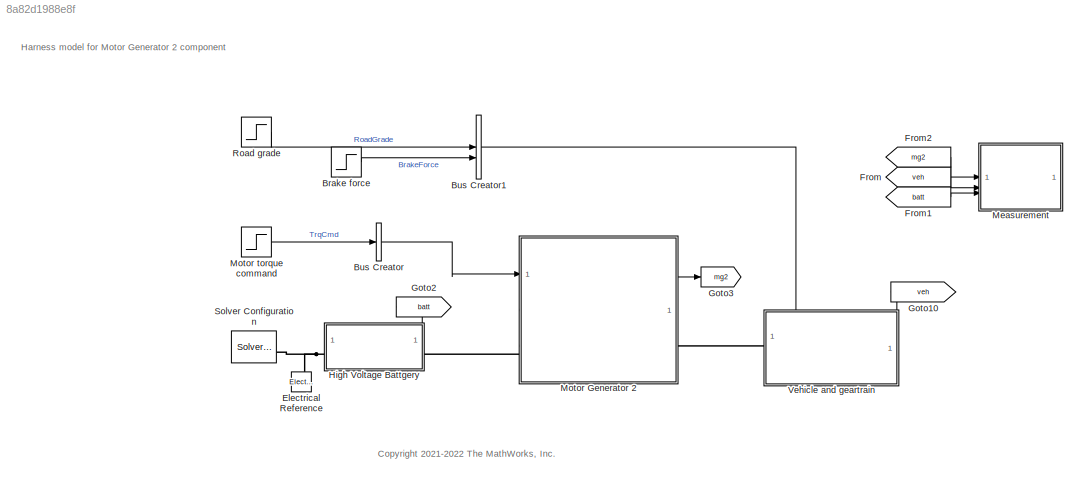
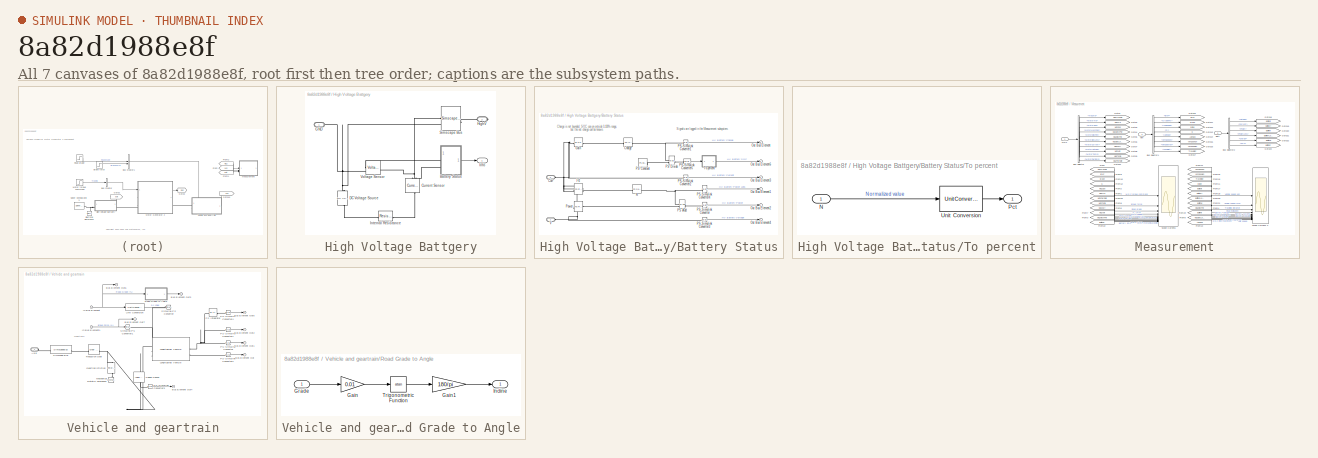
[diagram: thumbnail index - all 7 canvases of the model, root first then tree order]
MODEL mdl_8a82d1988e8f
KIND model
CONFIG AbsTol = 1e-3
CONFIG EnableMultiTasking = off
CONFIG FixedStep = auto
CONFIG MaxStep = auto
CONFIG MinStep = auto
CONFIG PreLoadFcn = MotorGenerator2_Component_harness_setup\n
CONFIG RelTol = 1e-3
CONFIG SampleTimeConstraint = Unconstrained
CONFIG SolverName = daessc
CONFIG StartTime = 0.0
CONFIG StopTime = 200
BLOCK [Step] Brake force
  After = 0
  AttributesFormatString = Before: %<Before>\nTime: %<Time>\nAfter: %<After>
  NameLocation = left
  SampleTime = 0
BLOCK [BusCreator] Bus Creator
  DisplayOption = bar
  InheritFromInputs = on
  Inputs = 1
BLOCK [BusCreator] Bus Creator1
  DisplayOption = bar
  InheritFromInputs = on
  Inputs = 2
BLOCK [Reference] Electrical Reference  REF=fl_lib/Electrical/Electrical Elements/Electrical Reference
  SourceBlock = fl_lib/Electrical/Electrical Elements/Electrical Reference
  SourceType = Electrical Reference
BLOCK [From] From
  GotoTag = veh
  NameLocation = left
BLOCK [From] From1
  GotoTag = batt
  NameLocation = left
BLOCK [From] From2
  GotoTag = mg2
  NameLocation = left
BLOCK [Goto] Goto10
  GotoTag = veh
BLOCK [Goto] Goto2
  GotoTag = batt
  NameLocation = top
BLOCK [Goto] Goto3
  GotoTag = mg2
BLOCK [SubSystem] High Voltage Battgery
  PortSchema = {"entries":[{"content":{"sides":[{"content":{"connectorIds":["LConn1"]},"type":"ConnectorPlacement.EquallySpacedRectSide","uuid":"8acd7e9a-bb08-4de6-aa14-0989ebba81b9"},{"content":{"connectorIds":["RConn1"],"side":"RIGHT"},"type":"ConnectorPlacement.EquallySpacedRectSide","uuid":"f80e1afc-966f-4d6b-84f9-f0b60dd6f20c"},{"content":{"connectorIds":["Out1"],"side":"TOP"},"type":"ConnectorPlacement.Equ...<+251ch>
BLOCK [SubSystem] High Voltage Battgery/Battery Status
BLOCK [Reference] High Voltage Battgery/Battery Status/Charge  REF=fl_lib/Physical Signals/Linear Operators/PS Integrator
  AttributesFormatString = %<x0> [%<x0_unit>]
  SourceBlock = fl_lib/Physical Signals/Linear Operators/PS Integrator
  SourceType = PS Integrator
BLOCK [PMIOPort] High Voltage Battgery/Battery Status/Curr
  Port = 2
  Side = Left
BLOCK [Reference] High Voltage Battgery/Battery Status/Gain  REF=fl_lib/Physical Signals/Functions/PS Gain
  AttributesFormatString = %<gain>
  SourceBlock = fl_lib/Physical Signals/Functions/PS Gain
  SourceType = PS Gain
BLOCK [Reference] High Voltage Battgery/Battery Status/I^2  REF=fl_lib/Physical Signals/Functions/PS Product
  SourceBlock = fl_lib/Physical Signals/Functions/PS Product
  SourceType = PS Product
BLOCK [Outport] High Voltage Battgery/Battery Status/Out Bus Element
  AttributesFormatString = %<Unit>
BLOCK [Outport] High Voltage Battgery/Battery Status/Out Bus Element1
  AttributesFormatString = %<Unit>
BLOCK [Outport] High Voltage Battgery/Battery Status/Out Bus Element2
  AttributesFormatString = %<Unit>
BLOCK [Outport] High Voltage Battgery/Battery Status/Out Bus Element3
  AttributesFormatString = %<Unit>
BLOCK [Outport] High Voltage Battgery/Battery Status/Out Bus Element4
  AttributesFormatString = %<Unit>
BLOCK [Outport] High Voltage Battgery/Battery Status/Out Bus Element6
  AttributesFormatString = %<Unit>
BLOCK [Reference] High Voltage Battgery/Battery Status/PS Add  REF=fl_lib/Physical Signals/Functions/PS Add
  SourceBlock = fl_lib/Physical Signals/Functions/PS Add
  SourceType = PS Add
BLOCK [Reference] High Voltage Battgery/Battery Status/PS Constant  REF=fl_lib/Physical Signals/Sources/PS Constant
  AttributesFormatString = %<constant> [%<constant_unit>]
  NameLocation = left
  SourceBlock = fl_lib/Physical Signals/Sources/PS Constant
  SourceType = PS Constant
BLOCK [Reference] High Voltage Battgery/Battery Status/PS Divide  REF=fl_lib/Physical Signals/Functions/PS Divide
  SourceBlock = fl_lib/Physical Signals/Functions/PS Divide
  SourceType = PS Divide
BLOCK [Reference] High Voltage Battgery/Battery Status/PS-Simulink Converter  REF=nesl_utility/PS-Simulink
Converter
  AttributesFormatString = %<Unit>
  SourceBlock = nesl_utility/PS-Simulink\nConverter
  SourceType = PS-Simulink\nConverter
BLOCK [Reference] High Voltage Battgery/Battery Status/PS-Simulink Converter1  REF=nesl_utility/PS-Simulink
Converter
  AttributesFormatString = %<Unit>
  SourceBlock = nesl_utility/PS-Simulink\nConverter
  SourceType = PS-Simulink\nConverter
BLOCK [Reference] High Voltage Battgery/Battery Status/PS-Simulink Converter2  REF=nesl_utility/PS-Simulink
Converter
  AttributesFormatString = %<Unit>
  SourceBlock = nesl_utility/PS-Simulink\nConverter
  SourceType = PS-Simulink\nConverter
BLOCK [Reference] High Voltage Battgery/Battery Status/PS-Simulink Converter3  REF=nesl_utility/PS-Simulink
Converter
  AttributesFormatString = %<Unit>
  SourceBlock = nesl_utility/PS-Simulink\nConverter
  SourceType = PS-Simulink\nConverter
BLOCK [Reference] High Voltage Battgery/Battery Status/PS-Simulink Converter4  REF=nesl_utility/PS-Simulink
Converter
  AttributesFormatString = %<Unit>
  SourceBlock = nesl_utility/PS-Simulink\nConverter
  SourceType = PS-Simulink\nConverter
BLOCK [Reference] High Voltage Battgery/Battery Status/PS-Simulink Converter6  REF=nesl_utility/PS-Simulink
Converter
  AttributesFormatString = %<Unit>
  SourceBlock = nesl_utility/PS-Simulink\nConverter
  SourceType = PS-Simulink\nConverter
BLOCK [Reference] High Voltage Battgery/Battery Status/Power  REF=fl_lib/Physical Signals/Functions/PS Product
  SourceBlock = fl_lib/Physical Signals/Functions/PS Product
  SourceType = PS Product
BLOCK [Reference] High Voltage Battgery/Battery Status/R  REF=fl_lib/Physical Signals/Functions/PS Gain
  AttributesFormatString = %<gain> [%<gain_unit>]
  SourceBlock = fl_lib/Physical Signals/Functions/PS Gain
  SourceType = PS Gain
BLOCK [SubSystem] High Voltage Battgery/Battery Status/To percent
  ShowPortLabels = FromPortBlockName
BLOCK [Inport] High Voltage Battgery/Battery Status/To percent/N
BLOCK [Outport] High Voltage Battgery/Battery Status/To percent/Pct
  AttributesFormatString = %<Unit>
  Unit = %
BLOCK [UnitConversion] High Voltage Battgery/Battery Status/To percent/Unit Conversion
BLOCK [PMIOPort] High Voltage Battgery/Battery Status/V
  Side = Left
BLOCK [Reference] High Voltage Battgery/Current Sensor  REF=fl_lib/Electrical/Electrical Sensors/Current Sensor
  NameLocation = right
  SourceBlock = fl_lib/Electrical/Electrical Sensors/Current Sensor
  SourceType = Current Sensor
BLOCK [Reference] High Voltage Battgery/DC Voltage Source  REF=fl_lib/Electrical/Electrical Sources/DC Voltage Source
  AttributesFormatString = %<v0> [%<v0_unit>]
  NameLocation = right
  SourceBlock = fl_lib/Electrical/Electrical Sources/DC Voltage Source
  SourceType = DC Voltage Source
BLOCK [PMIOPort] High Voltage Battgery/GND
  Side = Left
BLOCK [PMIOPort] High Voltage Battgery/HighV
  Port = 2
  Side = Right
BLOCK [Outport] High Voltage Battgery/Info
BLOCK [Reference] High Voltage Battgery/Internal Resistance  REF=fl_lib/Electrical/Electrical Elements/Resistor
  AttributesFormatString = %<R> [%<R_unit>]
  SourceBlock = fl_lib/Electrical/Electrical Elements/Resistor
  SourceType = Resistor
BLOCK [SimscapeBus] High Voltage Battgery/Simscape Bus
  AttributesFormatString = %<ConnectionType>
  ConnectionType = Bus: Bus_HighVoltage
  HierarchyStrings = Plus;Minus
BLOCK [Reference] High Voltage Battgery/Voltage Sensor  REF=fl_lib/Electrical/Electrical Sensors/Voltage Sensor
  SourceBlock = fl_lib/Electrical/Electrical Sensors/Voltage Sensor
  SourceType = Voltage Sensor
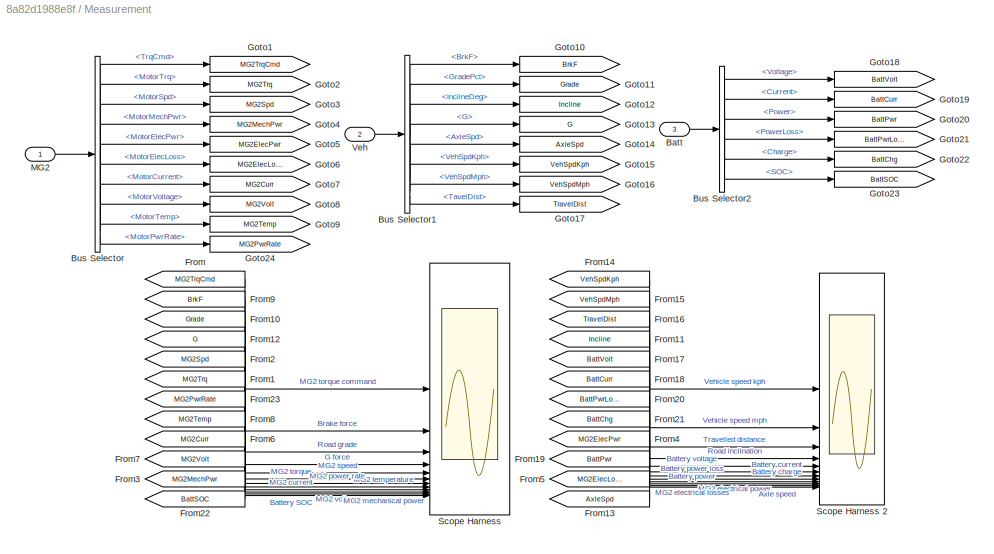
BLOCK [SubSystem] Measurement
BLOCK [Inport] Measurement/Batt
  Port = 3
BLOCK [BusSelector] Measurement/Bus Selector
  OutputSignals = TrqCmd,MotorTrq,MotorSpd,MotorMechPwr,MotorElecPwr,MotorElecLoss,MotorCurrent,MotorVoltage,MotorTemp,MotorPwrRate
BLOCK [BusSelector] Measurement/Bus Selector1
  OutputSignals = BrkF,GradePct,InclineDeg,G,AxleSpd,VehSpdKph,VehSpdMph,TavelDist
BLOCK [BusSelector] Measurement/Bus Selector2
  OutputSignals = Voltage,Current,Power,PowerLoss,Charge,SOC
BLOCK [From] Measurement/From
  GotoTag = MG2TrqCmd
  NameLocation = left
BLOCK [From] Measurement/From1
  GotoTag = MG2Trq
  NameLocation = left
BLOCK [From] Measurement/From10
  GotoTag = Grade
  NameLocation = left
BLOCK [From] Measurement/From11
  GotoTag = Incline
  NameLocation = left
BLOCK [From] Measurement/From12
  GotoTag = G
  NameLocation = left
BLOCK [From] Measurement/From13
  GotoTag = AxleSpd
  NameLocation = left
BLOCK [From] Measurement/From14
  GotoTag = VehSpdKph
  NameLocation = left
BLOCK [From] Measurement/From15
  GotoTag = VehSpdMph
  NameLocation = left
BLOCK [From] Measurement/From16
  GotoTag = TravelDist
  NameLocation = left
BLOCK [From] Measurement/From17
  GotoTag = BattVolt
  NameLocation = left
BLOCK [From] Measurement/From18
  GotoTag = BattCurr
  NameLocation = left
BLOCK [From] Measurement/From19
  GotoTag = BattPwr
  NameLocation = left
BLOCK [From] Measurement/From2
  GotoTag = MG2Spd
  NameLocation = left
BLOCK [From] Measurement/From20
  GotoTag = BattPwrLoss
  NameLocation = left
BLOCK [From] Measurement/From21
  GotoTag = BattChg
  NameLocation = left
BLOCK [From] Measurement/From22
  GotoTag = BattSOC
  NameLocation = left
BLOCK [From] Measurement/From23
  GotoTag = MG2PwrRate
  NameLocation = left
BLOCK [From] Measurement/From3
  GotoTag = MG2MechPwr
  NameLocation = left
BLOCK [From] Measurement/From4
  GotoTag = MG2ElecPwr
  NameLocation = left
BLOCK [From] Measurement/From5
  GotoTag = MG2ElecLoss
  NameLocation = left
BLOCK [From] Measurement/From6
  GotoTag = MG2Curr
  NameLocation = left
BLOCK [From] Measurement/From7
  GotoTag = MG2Volt
  NameLocation = left
BLOCK [From] Measurement/From8
  GotoTag = MG2Temp
  NameLocation = left
BLOCK [From] Measurement/From9
  GotoTag = BrkF
  NameLocation = left
BLOCK [Goto] Measurement/Goto1
  GotoTag = MG2TrqCmd
  NameLocation = right
BLOCK [Goto] Measurement/Goto10
  GotoTag = BrkF
  NameLocation = right
BLOCK [Goto] Measurement/Goto11
  GotoTag = Grade
  NameLocation = right
BLOCK [Goto] Measurement/Goto12
  GotoTag = Incline
  NameLocation = right
BLOCK [Goto] Measurement/Goto13
  GotoTag = G
  NameLocation = right
BLOCK [Goto] Measurement/Goto14
  GotoTag = AxleSpd
  NameLocation = right
BLOCK [Goto] Measurement/Goto15
  GotoTag = VehSpdKph
  NameLocation = right
BLOCK [Goto] Measurement/Goto16
  GotoTag = VehSpdMph
  NameLocation = right
BLOCK [Goto] Measurement/Goto17
  GotoTag = TravelDist
  NameLocation = right
BLOCK [Goto] Measurement/Goto18
  GotoTag = BattVolt
  NameLocation = right
BLOCK [Goto] Measurement/Goto19
  GotoTag = BattCurr
  NameLocation = right
BLOCK [Goto] Measurement/Goto2
  GotoTag = MG2Trq
  NameLocation = right
BLOCK [Goto] Measurement/Goto20
  GotoTag = BattPwr
  NameLocation = right
BLOCK [Goto] Measurement/Goto21
  GotoTag = BattPwrLoss
  NameLocation = right
BLOCK [Goto] Measurement/Goto22
  GotoTag = BattChg
  NameLocation = right
BLOCK [Goto] Measurement/Goto23
  GotoTag = BattSOC
  NameLocation = right
BLOCK [Goto] Measurement/Goto24
  GotoTag = MG2PwrRate
  NameLocation = right
BLOCK [Goto] Measurement/Goto3
  GotoTag = MG2Spd
  NameLocation = right
BLOCK [Goto] Measurement/Goto4
  GotoTag = MG2MechPwr
  NameLocation = right
BLOCK [Goto] Measurement/Goto5
  GotoTag = MG2ElecPwr
  NameLocation = right
BLOCK [Goto] Measurement/Goto6
  GotoTag = MG2ElecLoss
  NameLocation = right
BLOCK [Goto] Measurement/Goto7
  GotoTag = MG2Curr
  NameLocation = right
BLOCK [Goto] Measurement/Goto8
  GotoTag = MG2Volt
  NameLocation = right
BLOCK [Goto] Measurement/Goto9
  GotoTag = MG2Temp
  NameLocation = right
BLOCK [Inport] Measurement/MG2
BLOCK [Scope] Measurement/Scope Harness
  Floating = off
  NumInputPorts = 12
  ScopeSpecificationString = Simulink.scopes.TimeScopeBlockCfg('CurrentConfiguration', extmgr.ConfigurationSet(extmgr.Configuration('Core','General UI',true),extmgr.Configuration('Core','Source UI',true),extmgr.Configuration('Sources','WiredSimulink',true),extmgr.Configuration('Visuals','Time Domain',true,'SerializedDisplays',{struct('MinYLimReal','43.75','MaxYLimReal','106.25','YLabelReal','','MinYLimMag','43.75','MaxYLimMag...<+9040ch>
BLOCK [Scope] Measurement/Scope Harness 2
  Floating = off
  NumInputPorts = 12
  ScopeSpecificationString = Simulink.scopes.TimeScopeBlockCfg('CurrentConfiguration', extmgr.ConfigurationSet(extmgr.Configuration('Core','General UI',true),extmgr.Configuration('Core','Source UI',true),extmgr.Configuration('Sources','WiredSimulink',true,'DataLoggingVariableName','ScopeData1'),extmgr.Configuration('Visuals','Time Domain',true,'SerializedDisplays',{struct('MinYLimReal','-21.06497','MaxYLimReal','189.58472','Y...<+9135ch>
BLOCK [Inport] Measurement/Veh
  Port = 2
BLOCK [SubSystem] Motor Generator 2
  PortSchema = {"entries":[{"content":{"sides":[{"content":{"connectorIds":["In1","LConn1"]},"type":"ConnectorPlacement.EquallySpacedRectSide","uuid":"02d16a10-ccfb-4288-a5a1-1144159c5ca2"},{"content":{"connectorIds":["Out1","LConn2"],"side":"RIGHT"},"type":"ConnectorPlacement.EquallySpacedRectSide","uuid":"b2601986-efe5-4f5e-bd54-3f5cb03e9252"},{"content":{"connectorIds":[],"side":"TOP"},"type":"ConnectorPlacem...<+258ch>
  ReferencedSubsystem = MotorDriveUnit_refsub_Basic
  T = initial.MG2_AirTemp_K
  T_eff = motorGenerator2.trq_eff_Nm
  Tc = motorGenerator2.responseTime_s
  Value = motorGenerator2.powerMax_kW
  eff = motorGenerator2.efficiency_pct
  k = motorGenerator2.dampSpringStiffness_Nm_per_rad
  mu_visc = motorGenerator2.dampSpringFriction_Nm_per_rpm
  temperature = initial.MG2_Temperature_K
  thermal_mass = motorGenerator2.thermalMass_J_perK
  torque_max = motorGenerator2.trqMax_Nm
  w_eff = motorGenerator2.spd_eff_rpm
  w_tol = smoothing.MG2_dampSpringVelTol_rpm
BLOCK [Step] Motor torque command
  After = 100
  AttributesFormatString = Before: %<Before>\nTime: %<Time>\nAfter: %<After>
  Before = 50
  NameLocation = left
  SampleTime = 0
  Time = 50
BLOCK [Step] Road grade
  After = 7
  AttributesFormatString = Before: %<Before>\nTime: %<Time>\nAfter: %<After>
  NameLocation = left
  SampleTime = 0
  Time = 100
BLOCK [Reference] Solver Configuration  REF=nesl_utility/Solver
Configuration
  AttributesFormatString = Local solver %<UseLocalSolver>
  NameLocation = top
  SourceBlock = nesl_utility/Solver\nConfiguration
  SourceType = Solver\nConfiguration
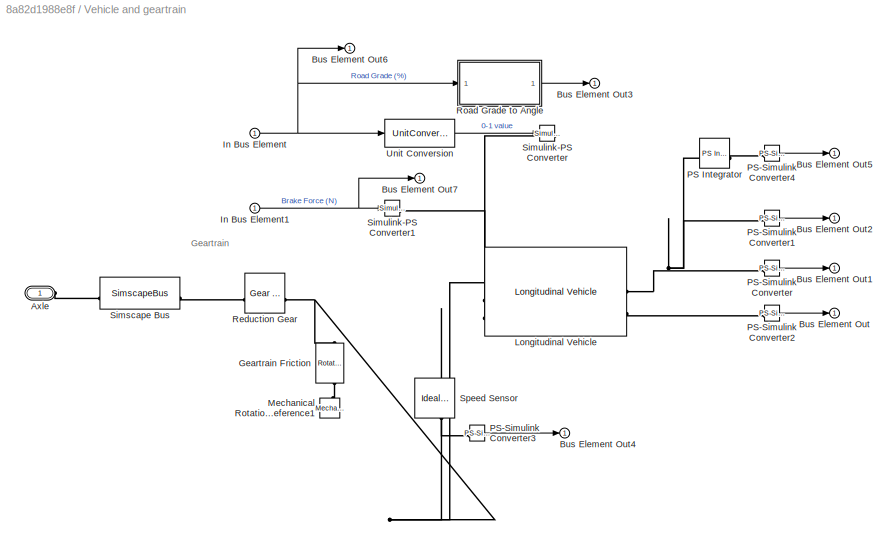
BLOCK [SubSystem] Vehicle and geartrain
  PortSchema = {"entries":[{"content":{"sides":[{"content":{"connectorIds":["LConn1"]},"type":"ConnectorPlacement.EquallySpacedRectSide","uuid":"26173f4b-7c8a-4f16-9397-bd2703a262c3"},{"content":{"connectorIds":[],"side":"RIGHT"},"type":"ConnectorPlacement.EquallySpacedRectSide","uuid":"c1cca5f5-e160-4db7-9272-a3c788f9ef94"},{"content":{"connectorIds":["In1","Out1"],"side":"TOP"},"type":"ConnectorPlacement.Equal...<+249ch>
BLOCK [PMIOPort] Vehicle and geartrain/Axle
  Side = Left
BLOCK [Outport] Vehicle and geartrain/Bus Element Out
  AttributesFormatString = %<Unit>
BLOCK [Outport] Vehicle and geartrain/Bus Element Out1
  AttributesFormatString = %<Unit>
BLOCK [Outport] Vehicle and geartrain/Bus Element Out2
  AttributesFormatString = %<Unit>
BLOCK [Outport] Vehicle and geartrain/Bus Element Out3
  AttributesFormatString = %<Unit>
BLOCK [Outport] Vehicle and geartrain/Bus Element Out4
  AttributesFormatString = %<Unit>
BLOCK [Outport] Vehicle and geartrain/Bus Element Out5
  AttributesFormatString = %<Unit>
BLOCK [Outport] Vehicle and geartrain/Bus Element Out6
  AttributesFormatString = %<Unit>
BLOCK [Outport] Vehicle and geartrain/Bus Element Out7
  AttributesFormatString = %<Unit>
BLOCK [Reference] Vehicle and geartrain/Geartrain Friction  REF=fl_lib/Mechanical/Rotational Elements/Rotational Damper
  AttributesFormatString = %<D> %<D_unit>
  NameLocation = left
  SourceBlock = fl_lib/Mechanical/Rotational Elements/Rotational Damper
  SourceType = Rotational Damper
BLOCK [Inport] Vehicle and geartrain/In Bus Element
  AttributesFormatString = %<Unit>
BLOCK [Inport] Vehicle and geartrain/In Bus Element1
  AttributesFormatString = %<Unit>
BLOCK [Reference] Vehicle and geartrain/Longitudinal Vehicle  REF=sdl_lib/Tires & Vehicles/Longitudinal Vehicle
  AttributesFormatString = %<V_x> [%<V_x_unit>]\nPriority: %<V_x_priority>
  SourceBlock = sdl_lib/Tires & Vehicles/Longitudinal Vehicle
  SourceType = Longitudinal Vehicle
BLOCK [Reference] Vehicle and geartrain/Mechanical Rotational Reference1  REF=fl_lib/Mechanical/Rotational Elements/Mechanical
Rotational Reference
  SourceBlock = fl_lib/Mechanical/Rotational Elements/Mechanical\nRotational Reference
  SourceType = Mechanical\nRotational Reference
BLOCK [Reference] Vehicle and geartrain/PS Integrator  REF=fl_lib/Physical Signals/Linear Operators/PS Integrator
  AttributesFormatString = Initial: %<x0> %<x0_unit>
  SourceBlock = fl_lib/Physical Signals/Linear Operators/PS Integrator
  SourceType = PS Integrator
BLOCK [Reference] Vehicle and geartrain/PS-Simulink Converter  REF=nesl_utility/PS-Simulink
Converter
  AttributesFormatString = %<Unit>
  SourceBlock = nesl_utility/PS-Simulink\nConverter
  SourceType = PS-Simulink\nConverter
BLOCK [Reference] Vehicle and geartrain/PS-Simulink Converter1  REF=nesl_utility/PS-Simulink
Converter
  AttributesFormatString = %<Unit>
  SourceBlock = nesl_utility/PS-Simulink\nConverter
  SourceType = PS-Simulink\nConverter
BLOCK [Reference] Vehicle and geartrain/PS-Simulink Converter2  REF=nesl_utility/PS-Simulink
Converter
  AttributesFormatString = %<Unit>
  SourceBlock = nesl_utility/PS-Simulink\nConverter
  SourceType = PS-Simulink\nConverter
BLOCK [Reference] Vehicle and geartrain/PS-Simulink Converter3  REF=nesl_utility/PS-Simulink
Converter
  AttributesFormatString = %<Unit>
  SourceBlock = nesl_utility/PS-Simulink\nConverter
  SourceType = PS-Simulink\nConverter
BLOCK [Reference] Vehicle and geartrain/PS-Simulink Converter4  REF=nesl_utility/PS-Simulink
Converter
  AttributesFormatString = %<Unit>
  SourceBlock = nesl_utility/PS-Simulink\nConverter
  SourceType = PS-Simulink\nConverter
BLOCK [Reference] Vehicle and geartrain/Reduction Gear  REF=fl_lib/Mechanical/Mechanisms/Gear Box
  AttributesFormatString = %<ratio>
  SourceBlock = fl_lib/Mechanical/Mechanisms/Gear Box
  SourceType = Gear Box
BLOCK [SubSystem] Vehicle and geartrain/Road Grade to Angle
  NameLocation = top
BLOCK [Gain] Vehicle and geartrain/Road Grade to Angle/Gain
  Gain = 0.01
BLOCK [Gain] Vehicle and geartrain/Road Grade to Angle/Gain1
  Gain = 180/pi
BLOCK [Inport] Vehicle and geartrain/Road Grade to Angle/Grade
  AttributesFormatString = %<Unit>
  NameLocation = left
  Unit = %
BLOCK [Outport] Vehicle and geartrain/Road Grade to Angle/Incline
  AttributesFormatString = %<Unit>
  NameLocation = right
  Unit = deg
BLOCK [Trigonometry] Vehicle and geartrain/Road Grade to Angle/Trigonometric Function
  Operator = atan
BLOCK [SimscapeBus] Vehicle and geartrain/Simscape Bus
  AttributesFormatString = %<ConnectionType>
  ConnectionType = Bus: Bus_Rotational
  HierarchyStrings = AngSpd
BLOCK [Reference] Vehicle and geartrain/Simulink-PS Converter  REF=nesl_utility/Simulink-PS
Converter
  AttributesFormatString = %<Unit>
  SourceBlock = nesl_utility/Simulink-PS\nConverter
  SourceType = Simulink-PS\nConverter
BLOCK [Reference] Vehicle and geartrain/Simulink-PS Converter1  REF=nesl_utility/Simulink-PS
Converter
  AttributesFormatString = %<Unit>
  SourceBlock = nesl_utility/Simulink-PS\nConverter
  SourceType = Simulink-PS\nConverter
BLOCK [Reference] Vehicle and geartrain/Speed Sensor  REF=fl_lib/Mechanical/Mechanical Sensors/Ideal Rotational
Motion Sensor
  NameLocation = right
  SourceBlock = fl_lib/Mechanical/Mechanical Sensors/Ideal Rotational\nMotion Sensor
  SourceType = Ideal Rotational\nMotion Sensor
BLOCK [UnitConversion] Vehicle and geartrain/Unit Conversion
  OutputType = Inherit: Inherit via back propagation
ANNOTATION (root): <copyright redacted>
ANNOTATION (root): Harness model for Motor Generator 2 component
ANNOTATION High Voltage Battgery/Battery Status: Charge is not bounded. SOC can go outside 0-100% range, but the net charge can be known.
ANNOTATION High Voltage Battgery/Battery Status: Signals are logged in the Measurement subsystem.
ANNOTATION Vehicle and geartrain: Geartrain
LINE Brake force:1 -> Bus Creator1:2
LINE Bus Creator1:1 -> Vehicle and geartrain:1
LINE Bus Creator:1 -> Motor Generator 2:1
LINE From1:1 -> Measurement:3
LINE From2:1 -> Measurement:1
LINE From:1 -> Measurement:2
LINE High Voltage Battgery/Battery Status/PS-Simulink Converter1:1 -> High Voltage Battgery/Battery Status/Out Bus Element:1
LINE High Voltage Battgery/Battery Status/PS-Simulink Converter2:1 -> High Voltage Battgery/Battery Status/Out Bus Element3:1
LINE High Voltage Battgery/Battery Status/PS-Simulink Converter3:1 -> High Voltage Battgery/Battery Status/Out Bus Element4:1
LINE High Voltage Battgery/Battery Status/PS-Simulink Converter4:1 -> High Voltage Battgery/Battery Status/Out Bus Element1:1
LINE High Voltage Battgery/Battery Status/PS-Simulink Converter6:1 -> High Voltage Battgery/Battery Status/To percent:1
LINE High Voltage Battgery/Battery Status/PS-Simulink Converter:1 -> High Voltage Battgery/Battery Status/Out Bus Element2:1
LINE High Voltage Battgery/Battery Status/To percent/N:1 -> High Voltage Battgery/Battery Status/To percent/Unit Conversion:1
LINE High Voltage Battgery/Battery Status/To percent/Unit Conversion:1 -> High Voltage Battgery/Battery Status/To percent/Pct:1
LINE High Voltage Battgery/Battery Status/To percent:1 -> High Voltage Battgery/Battery Status/Out Bus Element6:1
LINE High Voltage Battgery/Battery Status:1 -> High Voltage Battgery/Info:1
LINE High Voltage Battgery:1 -> Goto2:1
LINE Measurement/Batt:1 -> Measurement/Bus Selector2:1
LINE Measurement/Bus Selector1:1 -> Measurement/Goto10:1
LINE Measurement/Bus Selector1:2 -> Measurement/Goto11:1
LINE Measurement/Bus Selector1:3 -> Measurement/Goto12:1
LINE Measurement/Bus Selector1:4 -> Measurement/Goto13:1
LINE Measurement/Bus Selector1:5 -> Measurement/Goto14:1
LINE Measurement/Bus Selector1:6 -> Measurement/Goto15:1
LINE Measurement/Bus Selector1:7 -> Measurement/Goto16:1
LINE Measurement/Bus Selector1:8 -> Measurement/Goto17:1
LINE Measurement/Bus Selector2:1 -> Measurement/Goto18:1
LINE Measurement/Bus Selector2:2 -> Measurement/Goto19:1
LINE Measurement/Bus Selector2:3 -> Measurement/Goto20:1
LINE Measurement/Bus Selector2:4 -> Measurement/Goto21:1
LINE Measurement/Bus Selector2:5 -> Measurement/Goto22:1
LINE Measurement/Bus Selector2:6 -> Measurement/Goto23:1
LINE Measurement/Bus Selector:1 -> Measurement/Goto1:1
LINE Measurement/Bus Selector:10 -> Measurement/Goto24:1
LINE Measurement/Bus Selector:2 -> Measurement/Goto2:1
LINE Measurement/Bus Selector:3 -> Measurement/Goto3:1
LINE Measurement/Bus Selector:4 -> Measurement/Goto4:1
LINE Measurement/Bus Selector:5 -> Measurement/Goto5:1
LINE Measurement/Bus Selector:6 -> Measurement/Goto6:1
LINE Measurement/Bus Selector:7 -> Measurement/Goto7:1
LINE Measurement/Bus Selector:8 -> Measurement/Goto8:1
LINE Measurement/Bus Selector:9 -> Measurement/Goto9:1
LINE Measurement/From10:1 -> Measurement/Scope Harness:3
LINE Measurement/From11:1 -> Measurement/Scope Harness 2:4
LINE Measurement/From12:1 -> Measurement/Scope Harness:4
LINE Measurement/From13:1 -> Measurement/Scope Harness 2:12
LINE Measurement/From14:1 -> Measurement/Scope Harness 2:1
LINE Measurement/From15:1 -> Measurement/Scope Harness 2:2
LINE Measurement/From16:1 -> Measurement/Scope Harness 2:3
LINE Measurement/From17:1 -> Measurement/Scope Harness 2:5
LINE Measurement/From18:1 -> Measurement/Scope Harness 2:6
LINE Measurement/From19:1 -> Measurement/Scope Harness 2:10
LINE Measurement/From1:1 -> Measurement/Scope Harness:6
LINE Measurement/From20:1 -> Measurement/Scope Harness 2:7
LINE Measurement/From21:1 -> Measurement/Scope Harness 2:8
LINE Measurement/From22:1 -> Measurement/Scope Harness:12
LINE Measurement/From23:1 -> Measurement/Scope Harness:7
LINE Measurement/From2:1 -> Measurement/Scope Harness:5
LINE Measurement/From3:1 -> Measurement/Scope Harness:11
LINE Measurement/From4:1 -> Measurement/Scope Harness 2:9
LINE Measurement/From5:1 -> Measurement/Scope Harness 2:11
LINE Measurement/From6:1 -> Measurement/Scope Harness:9
LINE Measurement/From7:1 -> Measurement/Scope Harness:10
LINE Measurement/From8:1 -> Measurement/Scope Harness:8
LINE Measurement/From9:1 -> Measurement/Scope Harness:2
LINE Measurement/From:1 -> Measurement/Scope Harness:1
LINE Measurement/MG2:1 -> Measurement/Bus Selector:1
LINE Measurement/Veh:1 -> Measurement/Bus Selector1:1
LINE Motor Generator 2:1 -> Goto3:1
LINE Motor torque command:1 -> Bus Creator:1
LINE Road grade:1 -> Bus Creator1:1
NET Vehicle and geartrain/In Bus Element1:1 -> Vehicle and geartrain/Bus Element Out7:1, Vehicle and geartrain/Simulink-PS Converter1:1
NET Vehicle and geartrain/In Bus Element:1 -> Vehicle and geartrain/Bus Element Out6:1, Vehicle and geartrain/Road Grade to Angle:1, Vehicle and geartrain/Unit Conversion:1
LINE Vehicle and geartrain/PS-Simulink Converter1:1 -> Vehicle and geartrain/Bus Element Out2:1
LINE Vehicle and geartrain/PS-Simulink Converter2:1 -> Vehicle and geartrain/Bus Element Out:1
LINE Vehicle and geartrain/PS-Simulink Converter3:1 -> Vehicle and geartrain/Bus Element Out4:1
LINE Vehicle and geartrain/PS-Simulink Converter4:1 -> Vehicle and geartrain/Bus Element Out5:1
LINE Vehicle and geartrain/PS-Simulink Converter:1 -> Vehicle and geartrain/Bus Element Out1:1
LINE Vehicle and geartrain/Road Grade to Angle/Gain1:1 -> Vehicle and geartrain/Road Grade to Angle/Incline:1
LINE Vehicle and geartrain/Road Grade to Angle/Gain:1 -> Vehicle and geartrain/Road Grade to Angle/Trigonometric Function:1
LINE Vehicle and geartrain/Road Grade to Angle/Grade:1 -> Vehicle and geartrain/Road Grade to Angle/Gain:1
LINE Vehicle and geartrain/Road Grade to Angle/Trigonometric Function:1 -> Vehicle and geartrain/Road Grade to Angle/Gain1:1
LINE Vehicle and geartrain/Road Grade to Angle:1 -> Vehicle and geartrain/Bus Element Out3:1
LINE Vehicle and geartrain/Unit Conversion:1 -> Vehicle and geartrain/Simulink-PS Converter:1
LINE Vehicle and geartrain:1 -> Goto10:1
PNET net1: Electrical Reference:LConn1 -- High Voltage Battgery:LConn1 -- Solver Configuration:RConn1
PLINE High Voltage Battgery/Battery Status/Charge:LConn1 -- High Voltage Battgery/Battery Status/Gain:RConn1
PNET net2: High Voltage Battgery/Battery Status/Charge:RConn1 -- High Voltage Battgery/Battery Status/PS Divide:LConn1 -- High Voltage Battgery/Battery Status/PS-Simulink Converter1:LConn1
PNET net3: High Voltage Battgery/Battery Status/Curr:RConn1 -- High Voltage Battgery/Battery Status/Gain:LConn1 -- High Voltage Battgery/Battery Status/I^2:LConn1 -- High Voltage Battgery/Battery Status/I^2:LConn2 -- High Voltage Battgery/Battery Status/PS-Simulink Converter2:LConn1 -- High Voltage Battgery/Battery Status/Power:LConn2
PLINE High Voltage Battgery/Battery Status/I^2:RConn1 -- High Voltage Battgery/Battery Status/R:LConn1
PNET net4: High Voltage Battgery/Battery Status/PS Add:LConn1 -- High Voltage Battgery/Battery Status/PS-Simulink Converter4:LConn1 -- High Voltage Battgery/Battery Status/R:RConn1
PLINE High Voltage Battgery/Battery Status/PS Add:LConn2 -- High Voltage Battgery/Battery Status/Power:RConn1
PLINE High Voltage Battgery/Battery Status/PS Add:RConn1 -- High Voltage Battgery/Battery Status/PS-Simulink Converter:LConn1
PLINE High Voltage Battgery/Battery Status/PS Constant:RConn1 -- High Voltage Battgery/Battery Status/PS Divide:LConn2
PLINE High Voltage Battgery/Battery Status/PS Divide:RConn1 -- High Voltage Battgery/Battery Status/PS-Simulink Converter6:LConn1
PNET net5: High Voltage Battgery/Battery Status/PS-Simulink Converter3:LConn1 -- High Voltage Battgery/Battery Status/Power:LConn1 -- High Voltage Battgery/Battery Status/V:RConn1
PLINE High Voltage Battgery/Battery Status:LConn1 -- High Voltage Battgery/Voltage Sensor:RConn1
PLINE High Voltage Battgery/Battery Status:LConn2 -- High Voltage Battgery/Current Sensor:RConn1
PLINE High Voltage Battgery/Current Sensor:LConn1 -- High Voltage Battgery/Internal Resistance:RConn1
PNET net6: High Voltage Battgery/Current Sensor:RConn2 -- High Voltage Battgery/Simscape Bus:LConn1 -- High Voltage Battgery/Voltage Sensor:LConn1
PLINE High Voltage Battgery/DC Voltage Source:LConn1 -- High Voltage Battgery/Internal Resistance:LConn1
PNET net7: High Voltage Battgery/DC Voltage Source:RConn1 -- High Voltage Battgery/GND:RConn1 -- High Voltage Battgery/Simscape Bus:LConn2 -- High Voltage Battgery/Voltage Sensor:RConn2
PLINE High Voltage Battgery/HighV:RConn1 -- High Voltage Battgery/Simscape Bus:RConn1
PLINE High Voltage Battgery:RConn1 -- Motor Generator 2:LConn1
PLINE Motor Generator 2:LConn2 -- Vehicle and geartrain:LConn1
PLINE Vehicle and geartrain/Axle:RConn1 -- Vehicle and geartrain/Simscape Bus:RConn1
PNET net8: Vehicle and geartrain/Geartrain Friction:LConn1 -- Vehicle and geartrain/Longitudinal Vehicle:LConn1 -- Vehicle and geartrain/Reduction Gear:RConn1 -- Vehicle and geartrain/Speed Sensor:LConn1
PLINE Vehicle and geartrain/Geartrain Friction:RConn1 -- Vehicle and geartrain/Mechanical Rotational Reference1:LConn1
PLINE Vehicle and geartrain/Longitudinal Vehicle:LConn2 -- Vehicle and geartrain/Simulink-PS Converter1:RConn1
PLINE Vehicle and geartrain/Longitudinal Vehicle:LConn3 -- Vehicle and geartrain/Simulink-PS Converter:RConn1
PNET net9: Vehicle and geartrain/Longitudinal Vehicle:RConn1 -- Vehicle and geartrain/PS Integrator:LConn1 -- Vehicle and geartrain/PS-Simulink Converter1:LConn1 -- Vehicle and geartrain/PS-Simulink Converter:LConn1
PLINE Vehicle and geartrain/Longitudinal Vehicle:RConn2 -- Vehicle and geartrain/PS-Simulink Converter2:LConn1
PLINE Vehicle and geartrain/PS Integrator:RConn1 -- Vehicle and geartrain/PS-Simulink Converter4:LConn1
PLINE Vehicle and geartrain/PS-Simulink Converter3:LConn1 -- Vehicle and geartrain/Speed Sensor:RConn1
PLINE Vehicle and geartrain/Reduction Gear:LConn1 -- Vehicle and geartrain/Simscape Bus:LConn1
note: NET lines group one-source signal fan-out (src -> all destinations, sorted); 1:1 wires keep LINE; PNET lines group multi-terminal physical nets as a canonical sorted terminal list (undirected conserving connections); 2-terminal nets keep the pairwise PLINE form
